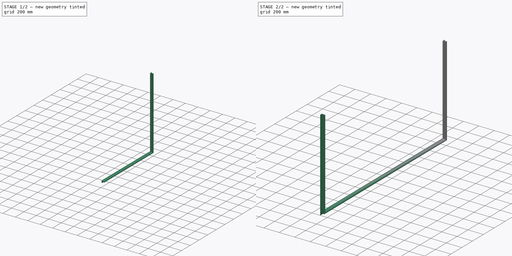
[diagram: build sequence overview — one tinted view per stage of 2, left to right]
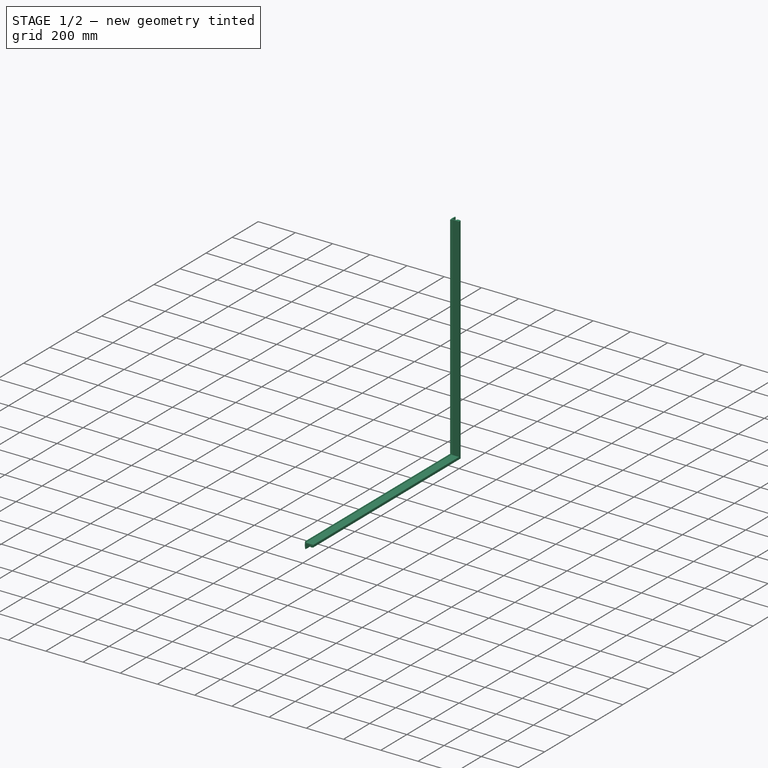
[diagram: stage 1 of 2 — iso view after this stage's code; geometry added in this stage tinted green]
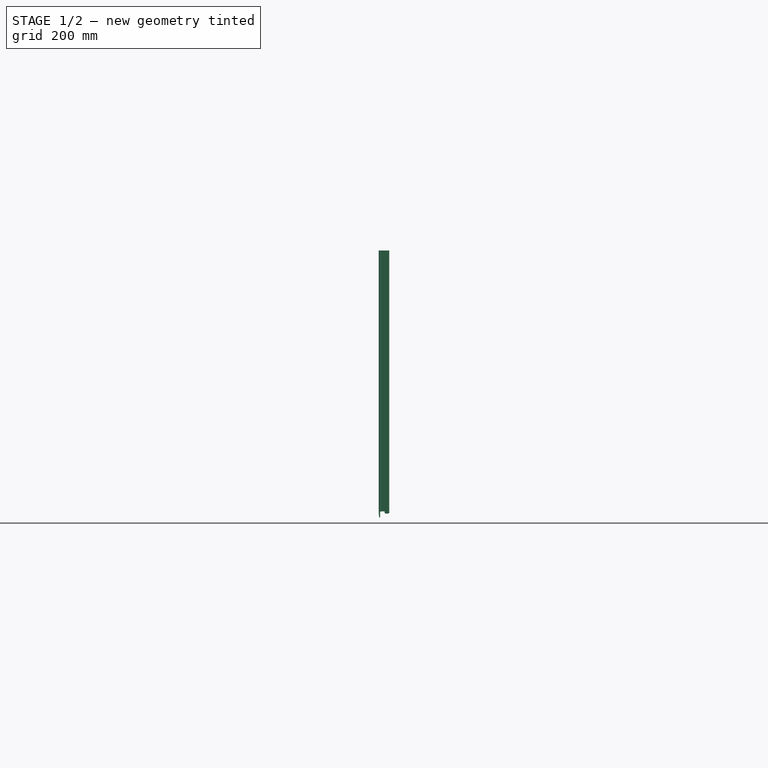
[diagram: stage 1 of 2 — front view after this stage's code; geometry added in this stage tinted green]
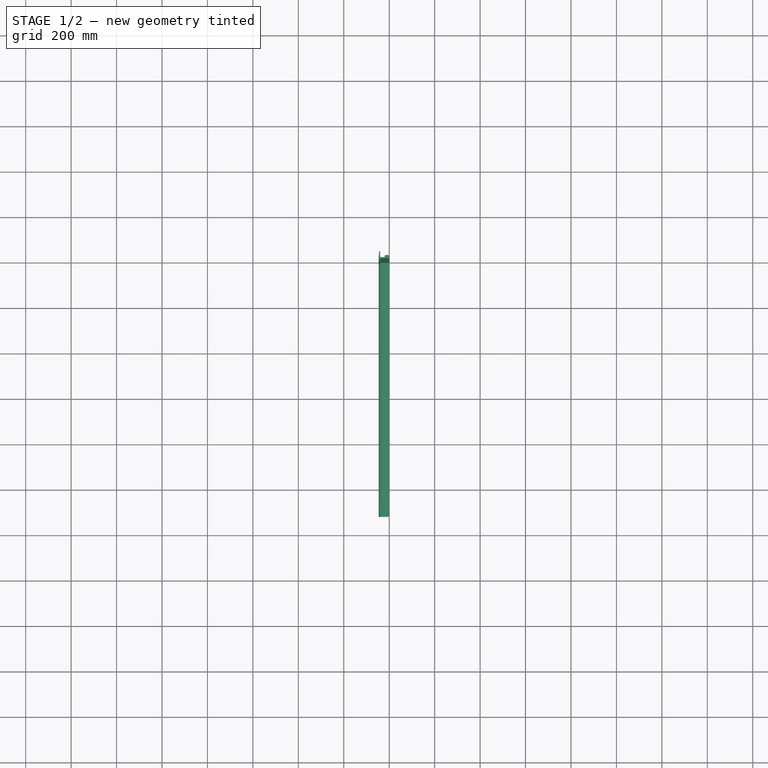
[diagram: stage 1 of 2 — top view after this stage's code; geometry added in this stage tinted green]
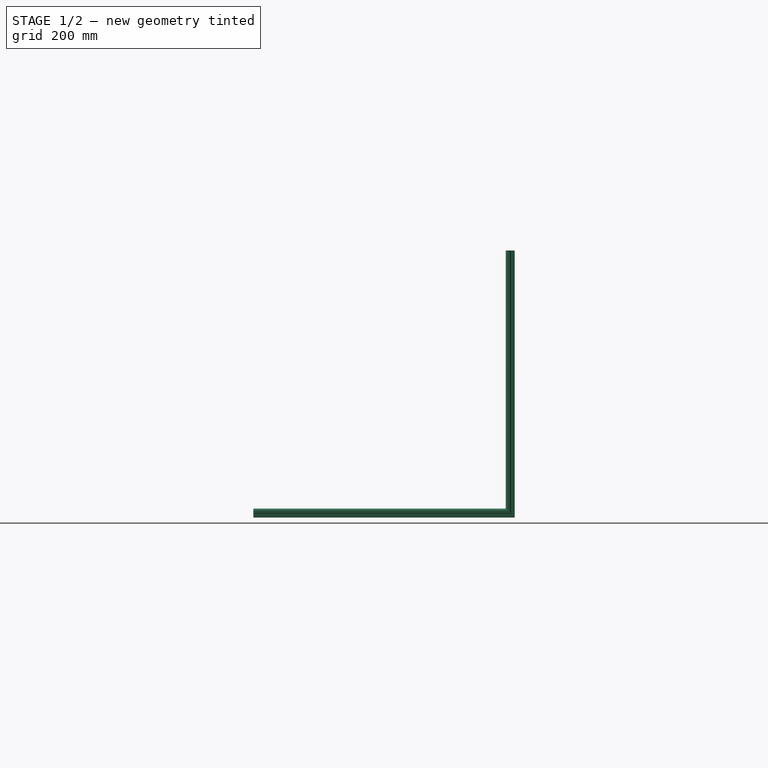
[diagram: stage 1 of 2 — right view after this stage's code; geometry added in this stage tinted green]
FCSTD DOCUMENT  (FreeCAD 0.18R4 (GitTag))
Label: door-sealing
License: All rights reserved
LicenseURL: http://en.wikipedia.org/wiki/All_rights_reserved
objects: Sketcher::SketchObject×2, PartDesign::AdditivePipe×1, PartDesign::Mirrored×1, PartDesign::Body×1
note: 6 computed .brp shape members not serialized (recipe doc carries the construction recipe); baked Part::Feature solids carry a one-line shape summary decoded from their .brp

FEATURE [Sketcher::SketchObject] Sketch
  MapMode = 5
  Support = -> [XY_Plane]
  sketch-geometry (11):
    g0: LineSegment StartX=0 StartY=0 StartZ=0 EndX=0 EndY=12.321 EndZ=0
    g1: ArcOfCircle CenterX=-10 CenterY=-4.99951 CenterZ=0 NormalX=0 NormalY=0 NormalZ=1 AngleXU=0 Radius=20 StartAngle=1.0472 EndAngle=2.0944
    g2: LineSegment StartX=-20 StartY=12.321 StartZ=0 EndX=-20 EndY=5 EndZ=0
    g3: LineSegment StartX=-20 StartY=5 StartZ=0 EndX=-35 EndY=5 EndZ=0
    g4: LineSegment StartX=-39.9228 StartY=9.92283 StartZ=0 EndX=-39.9228 EndY=29.9228 EndZ=0
    g5: ArcOfCircle CenterX=34.6876 CenterY=12.2716 CenterZ=0 NormalX=0 NormalY=0 NormalZ=1 AngleXU=0 Radius=80.6175 StartAngle=2.91514 EndAngle=3.36305
    g6: LineSegment StartX=-35 StartY=0 StartZ=0 EndX=0 EndY=0 EndZ=0
    g7: ArcOfCircle CenterX=-41.9228 CenterY=29.9228 CenterZ=0 NormalX=0 NormalY=0 NormalZ=1 AngleXU=0 Radius=2 StartAngle=6.28319 EndAngle=9.19833
    g8: ArcOfCircle CenterX=-42.01 CenterY=-4.997 CenterZ=0 NormalX=0 NormalY=0 NormalZ=1 AngleXU=0 Radius=2 StartAngle=3.36305 EndAngle=6.28133
    g9: ArcOfCircle CenterX=-35 CenterY=-5.01 CenterZ=0 NormalX=0 NormalY=0 NormalZ=1 AngleXU=0 Radius=5.01 StartAngle=1.5708 EndAngle=3.13974
    g10: ArcOfCircle CenterX=-35 CenterY=9.92283 CenterZ=0 NormalX=0 NormalY=0 NormalZ=1 AngleXU=0 Radius=4.92283 StartAngle=3.14159 EndAngle=4.71239
  constraints (35):
    c: Coincident(g0,g-1)
    c: PointOnObject(g0,g-2)
    c: Coincident(g1,g0)
    c: Coincident(g2,g1)
    c: Vertical(g2)
    c: Coincident(g3,g2)
    c: Horizontal(g3)
    c: Vertical(g4)
    c: Coincident(g6,g0)
    c: Horizontal(g6)
    c: Coincident(g7,g4)
    c: Coincident(g7,g5)
    c: Coincident(g8,g5)
    c: Tangent(g6,g9) = 1.5708
    c: Tangent(g3,g10) = 1.5708
    c: Tangent(g4,g10) = 1.5708
    c: Tangent(g7,g4)
    c: Tangent(g5,g7)
    c: Tangent(g8,g5)
    c: Radius(g1) = 20
    c: DistanceX(g2,g0) = 20
    c: DistanceY(g0,g0) = 12.321
    c: DistanceY(g6,g3) = 5
    c: DistanceX(g3,g3) = 15
    c: DistanceX(g6,g6) = 35
    c: DistanceY(g8,g6) = 4.997
    c: Radius(g8) = 2
    c: Radius(g7) = 2
    c: DistanceY(g4,g4) = 20
    c: Coincident(g8,g9)
    c: Tangent(g9,g8)
    c: Distance(g0,g5) = 44.296
    c: DistanceY(g0,g1) = 12.321
    c: Distance(g0,g5) = 53.359
    c: Radius(g9) = 5.01
FEATURE [Sketcher::SketchObject] Sketch001
  MapMode = 5
  Placement = pos=(0,0,0) rot=(0.57735,0.57735,0.57735;2.0944rad)
  Support = -> [YZ_Plane]
  sketch-geometry (3):
    g0: LineSegment StartX=0 StartY=-1143 StartZ=0 EndX=0 EndY=0 EndZ=0
    g1: LineSegment StartX=0 StartY=-1143 StartZ=0 EndX=-1118 EndY=-1143 EndZ=0
    g2: LineSegment StartX=-1118 StartY=-1143 StartZ=0 EndX=-1118 EndY=0 EndZ=0
  constraints (9):
    c: Vertical(g0)
    c: DistanceY(g0,g0) = 1143
    c: Coincident(g0,g-1)
    c: Coincident(g1,g0)
    c: Horizontal(g1)
    c: Coincident(g2,g1)
    c: PointOnObject(g2,g-1)
    c: Vertical(g2)
    c: DistanceX(g1,g1) = 1118
FEATURE [PartDesign::AdditivePipe] AdditivePipe
  AuxilleryCurvelinear = true
  AuxillerySpineTangent = false
  Binormal = (0,0,0)
  Mode = 0
  Profile = -> Sketch
  Refine = true
  Spine = -> Sketch001 [Edge3,Edge2]
  SpineTangent = false
  Transformation = 0
  Transition = 1
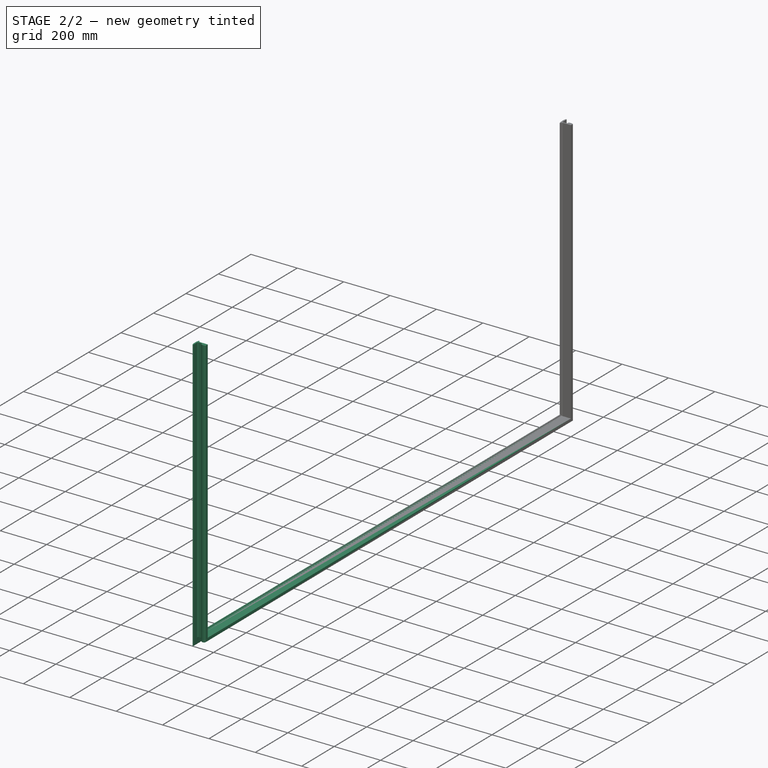
[diagram: stage 2 of 2 — iso view after this stage's code; geometry added in this stage tinted green]
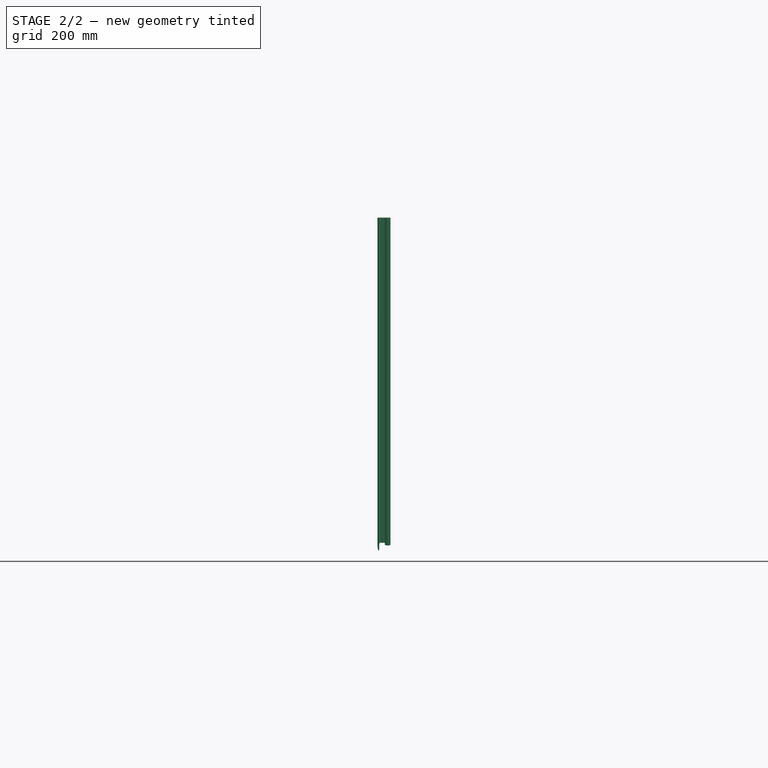
[diagram: stage 2 of 2 — front view after this stage's code; geometry added in this stage tinted green]
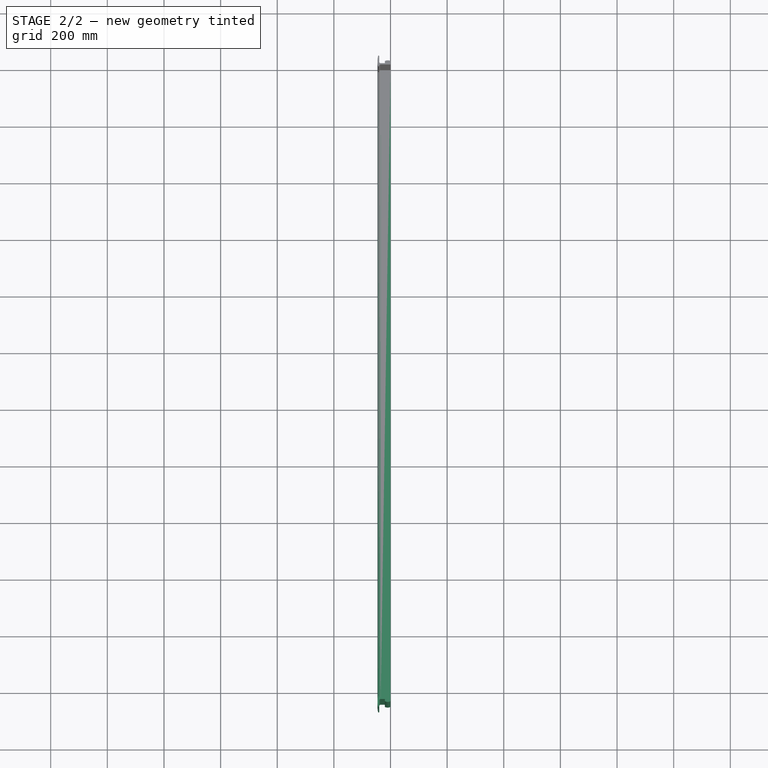
[diagram: stage 2 of 2 — top view after this stage's code; geometry added in this stage tinted green]
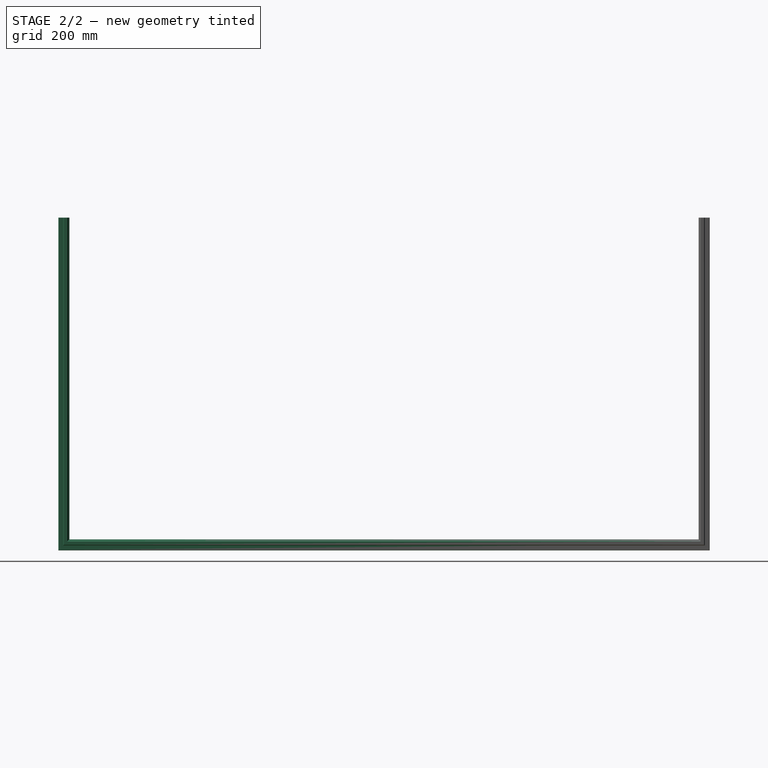
[diagram: stage 2 of 2 — right view after this stage's code; geometry added in this stage tinted green]
FEATURE [PartDesign::Mirrored] Mirrored
  BaseFeature = -> AdditivePipe
  MirrorPlane = -> AdditivePipe [Face1]
  Originals = -> [AdditivePipe]
  Refine = true
FEATURE [PartDesign::Body] Body
  Group = -> [Sketch,Sketch001,AdditivePipe,Mirrored]
  Origin = -> Origin
  Tip = -> Mirrored
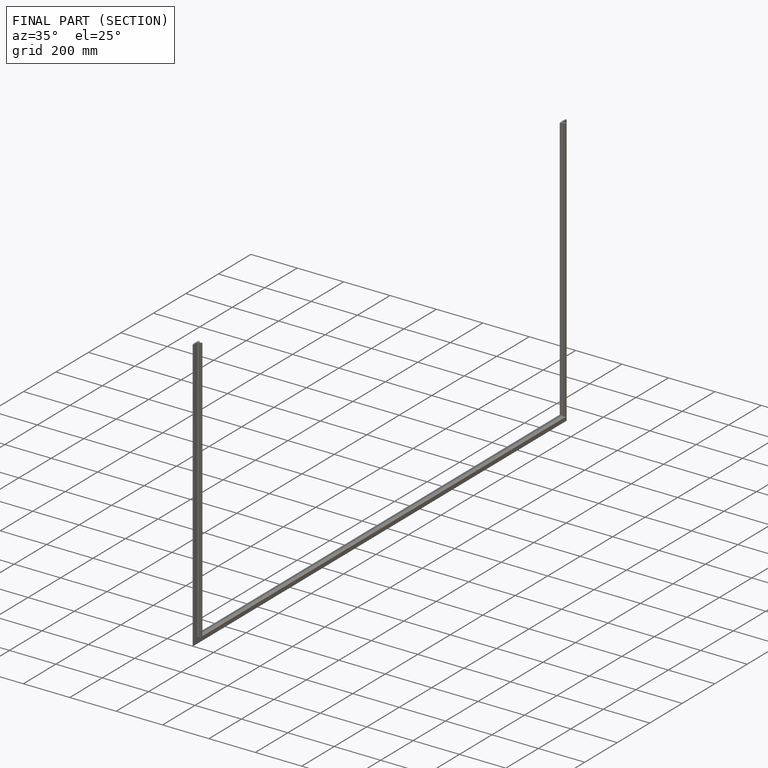
[diagram: finished part — half-section view (interior)]
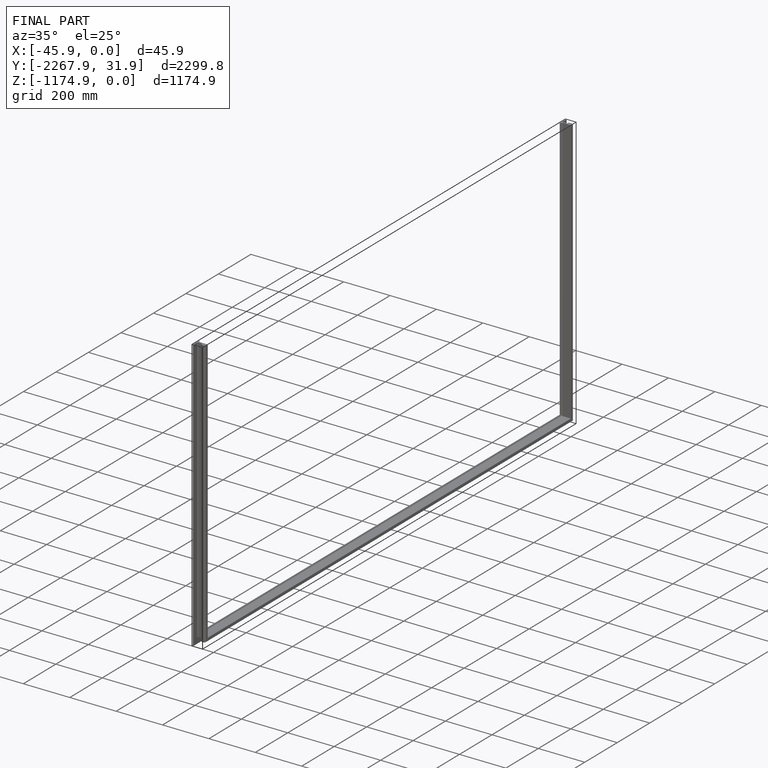
[diagram: finished part — iso view with bounding-box wireframe]
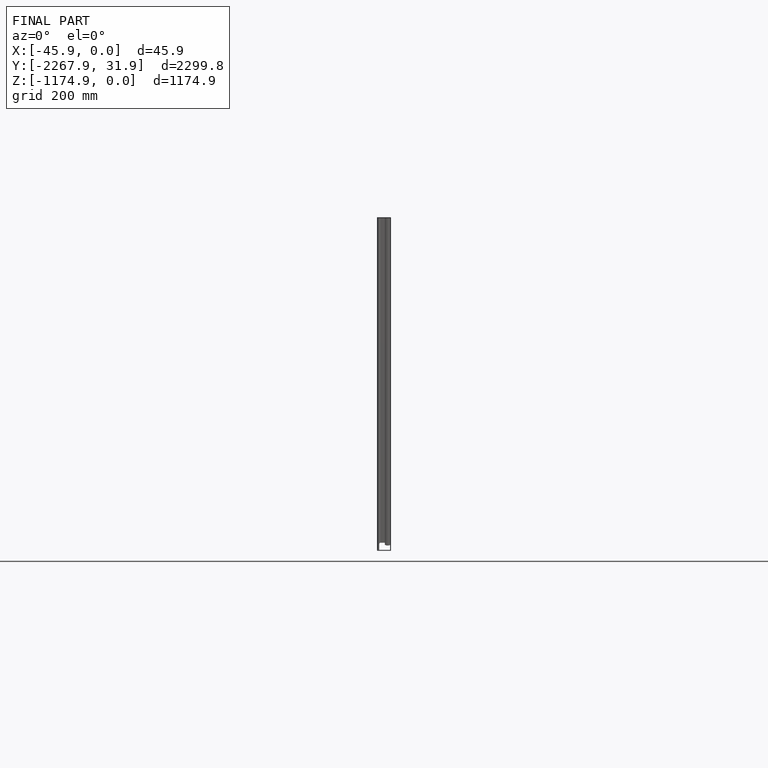
[diagram: finished part — front view with bounding-box wireframe]
